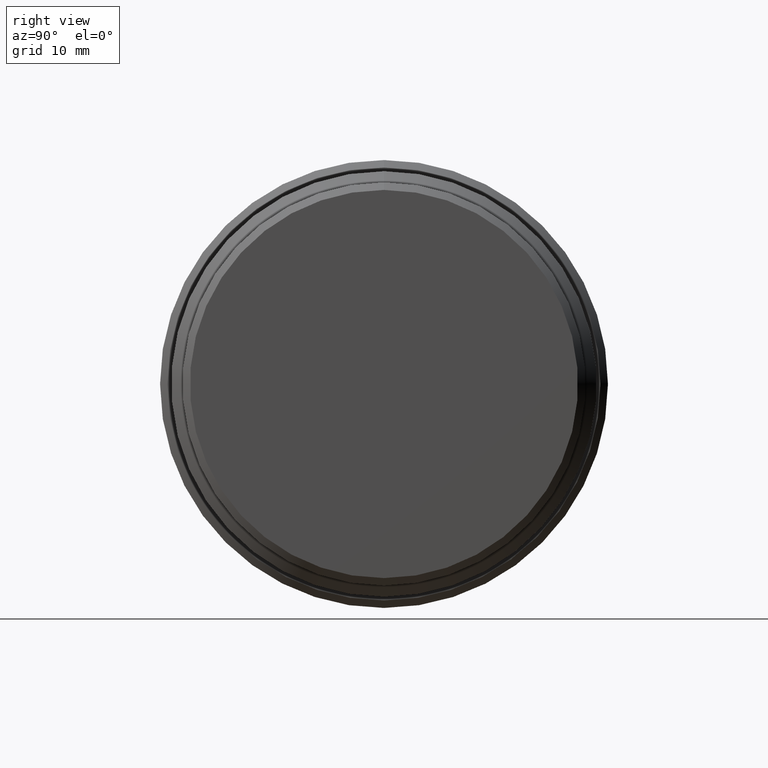
[diagram: clean part render]
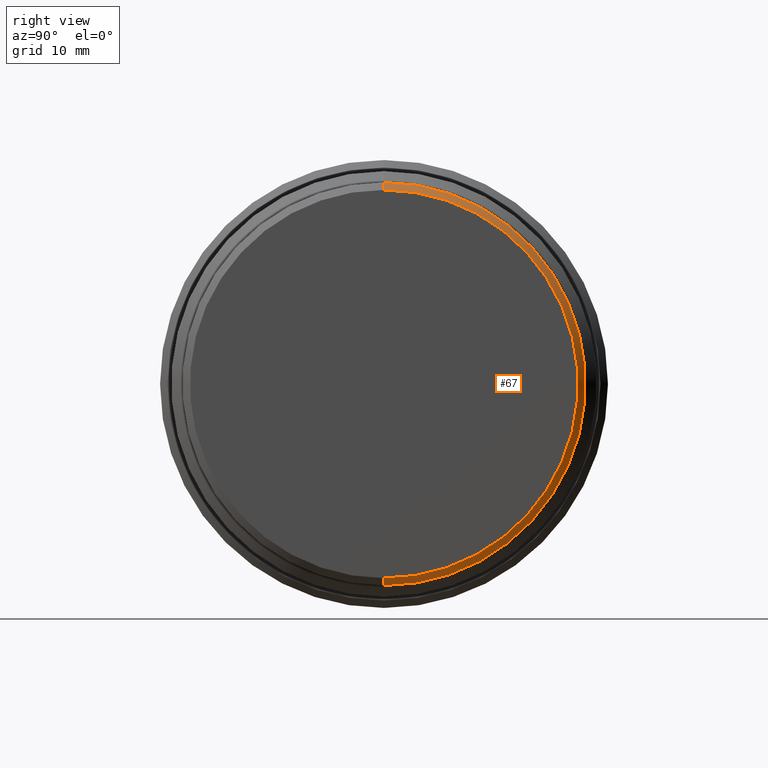
[diagram: same view with one face highlighted and labeled with its STEP entity id]
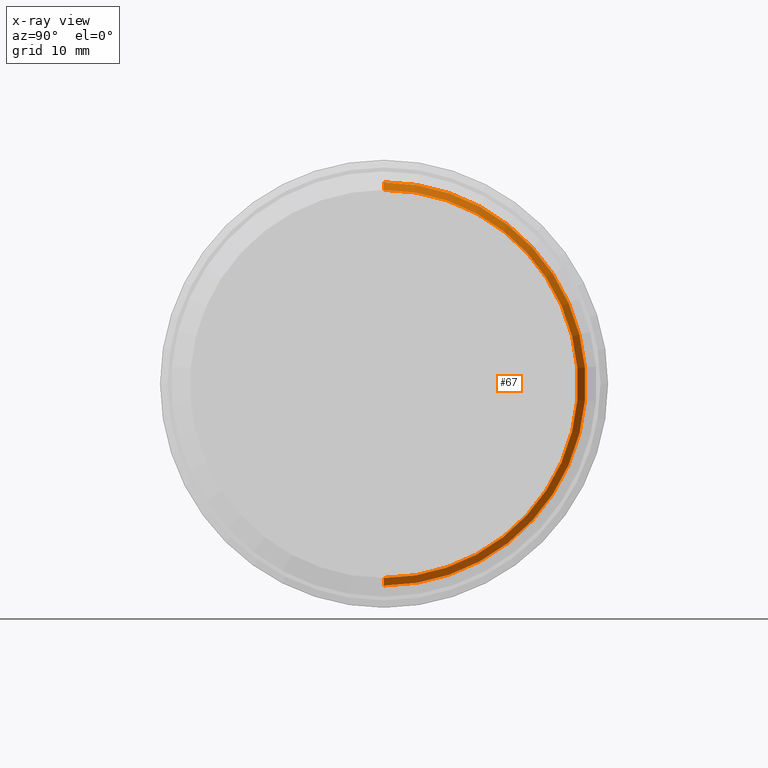
[diagram: x-ray of the same camera — body ghosted, the highlighted face saturated]
A machine part, right view. The second image highlights one B-rep face of the part: STEP entity #67.
The next image is the same camera in x-ray: the body ghosted, the highlighted face saturated — about 0% of this face is hidden behind the body in this view.
In plain terms, the highlighted conical surface has half-angle 45 deg.
Its self-contained STEP definition (entity closure, byte-faithful):
#8 = EDGE_LOOP ( 'NONE', ( #404, #63, #395, #17 ) ) ;
#17 = ORIENTED_EDGE ( 'NONE', *, *, #43, .F. ) ;
#34 = DIRECTION ( 'NONE',  ( -0.7071067811865352493, 0.000000000000000000, 0.7071067811865597852 ) ) ;
#43 = EDGE_CURVE ( 'NONE', #374, #148, #391, .T. ) ;
#49 = LINE ( 'NONE', #149, #363 ) ;
#63 = ORIENTED_EDGE ( 'NONE', *, *, #414, .T. ) ;
#65 = AXIS2_PLACEMENT_3D ( 'NONE', #309, #384, #207 ) ;
#67 = ADVANCED_FACE ( 'NONE', ( #283 ), #285, .T. ) ;
#97 = VECTOR ( 'NONE', #34, 1000.000000000000000 ) ;
#121 = CIRCLE ( 'NONE', #299, 25.99999999999995381 ) ;
#144 = CARTESIAN_POINT ( 'NONE',  ( 47.99999999999998579, 0.000000000000000000, 27.00000000000000355 ) ) ;
#148 = VERTEX_POINT ( 'NONE', #144 ) ;
#149 = CARTESIAN_POINT ( 'NONE',  ( 47.99999999999998579, 3.306546357697854128E-15, -27.00000000000000355 ) ) ;
#179 = CARTESIAN_POINT ( 'NONE',  ( 49.00000000000000000, 3.245314017740483398E-15, -25.99999999999995381 ) ) ;
#183 = CARTESIAN_POINT ( 'NONE',  ( 47.99999999999998579, 3.306546357697854128E-15, -27.00000000000000355 ) ) ;
#207 = DIRECTION ( 'NONE',  ( 0.000000000000000000, 0.000000000000000000, 1.000000000000000000 ) ) ;
#233 = DIRECTION ( 'NONE',  ( 0.000000000000000000, 0.000000000000000000, 1.000000000000000000 ) ) ;
#242 = DIRECTION ( 'NONE',  ( 0.000000000000000000, 0.000000000000000000, 1.000000000000000000 ) ) ;
#244 = AXIS2_PLACEMENT_3D ( 'NONE', #388, #345, #242 ) ;
#257 = VERTEX_POINT ( 'NONE', #179 ) ;
#270 = CARTESIAN_POINT ( 'NONE',  ( 49.00000000000000000, 0.000000000000000000, 0.000000000000000000 ) ) ;
#271 = VERTEX_POINT ( 'NONE', #183 ) ;
#272 = CARTESIAN_POINT ( 'NONE',  ( 49.00000000000000000, 0.000000000000000000, 25.99999999999995381 ) ) ;
#283 = FACE_OUTER_BOUND ( 'NONE', #8, .T. ) ;
#285 = CONICAL_SURFACE ( 'NONE', #65, 27.00000000000000355, 0.7853981633974657095 ) ;
#295 = DIRECTION ( 'NONE',  ( -0.7071067811865352493, 8.659560562355083235E-17, -0.7071067811865597852 ) ) ;
#299 = AXIS2_PLACEMENT_3D ( 'NONE', #270, #444, #233 ) ;
#309 = CARTESIAN_POINT ( 'NONE',  ( 47.99999999999998579, 0.000000000000000000, 0.000000000000000000 ) ) ;
#345 = DIRECTION ( 'NONE',  ( -1.000000000000000000, -0.000000000000000000, -0.000000000000000000 ) ) ;
#363 = VECTOR ( 'NONE', #295, 1000.000000000000000 ) ;
#374 = VERTEX_POINT ( 'NONE', #272 ) ;
#384 = DIRECTION ( 'NONE',  ( -1.000000000000000000, -0.000000000000000000, -0.000000000000000000 ) ) ;
#388 = CARTESIAN_POINT ( 'NONE',  ( 47.99999999999998579, 0.000000000000000000, 0.000000000000000000 ) ) ;
#390 = EDGE_CURVE ( 'NONE', #257, #374, #121, .T. ) ;
#391 = LINE ( 'NONE', #419, #97 ) ;
#395 = ORIENTED_EDGE ( 'NONE', *, *, #439, .F. ) ;
#404 = ORIENTED_EDGE ( 'NONE', *, *, #390, .F. ) ;
#414 = EDGE_CURVE ( 'NONE', #257, #271, #49, .T. ) ;
#419 = CARTESIAN_POINT ( 'NONE',  ( 47.99999999999998579, 0.000000000000000000, 27.00000000000000355 ) ) ;
#439 = EDGE_CURVE ( 'NONE', #148, #271, #450, .T. ) ;
#444 = DIRECTION ( 'NONE',  ( 1.000000000000000000, 0.000000000000000000, 0.000000000000000000 ) ) ;
#450 = CIRCLE ( 'NONE', #244, 27.00000000000000355 ) ;